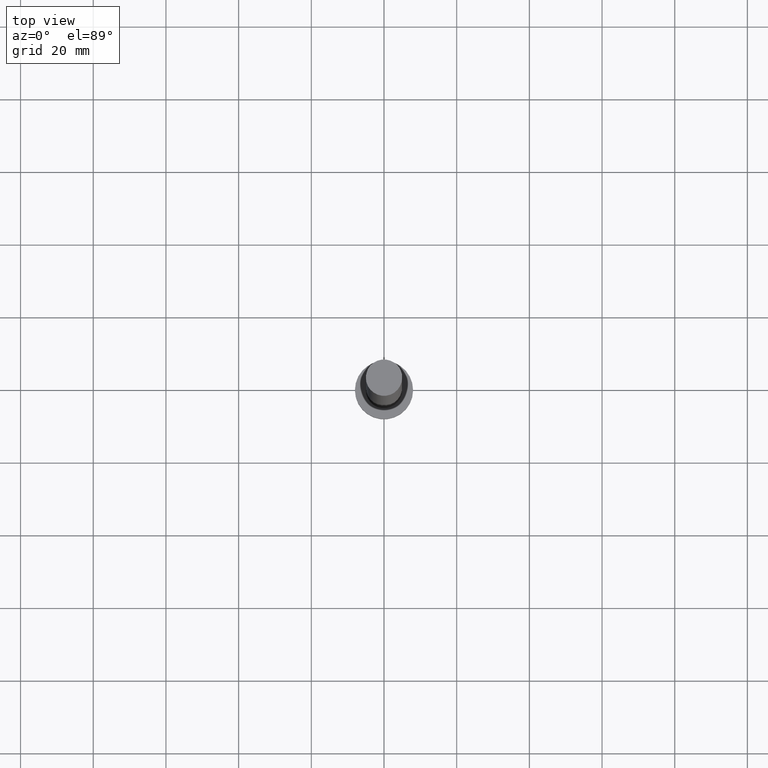
[diagram: clean part render]
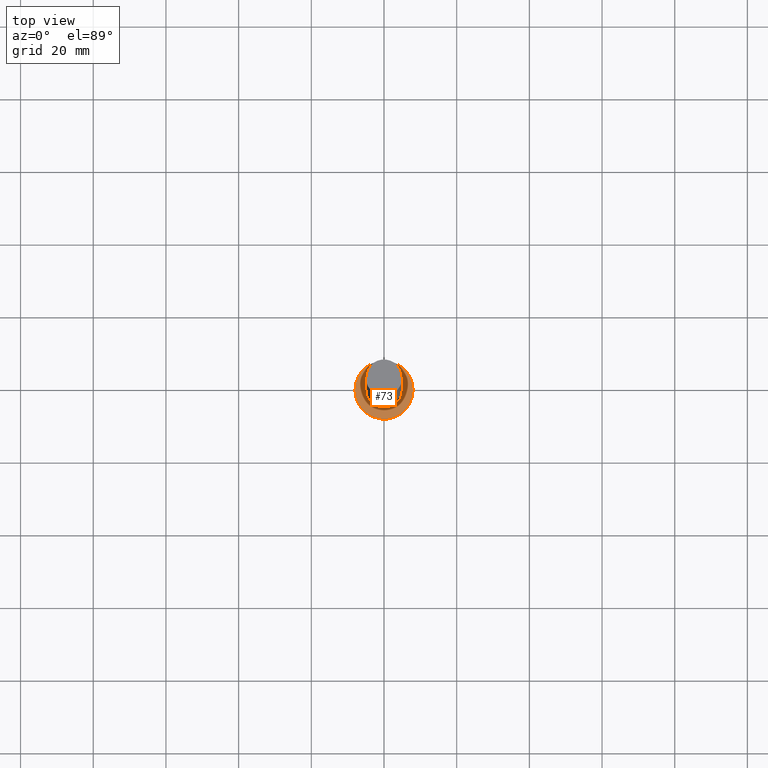
[diagram: same view with one face highlighted and labeled with its STEP entity id]
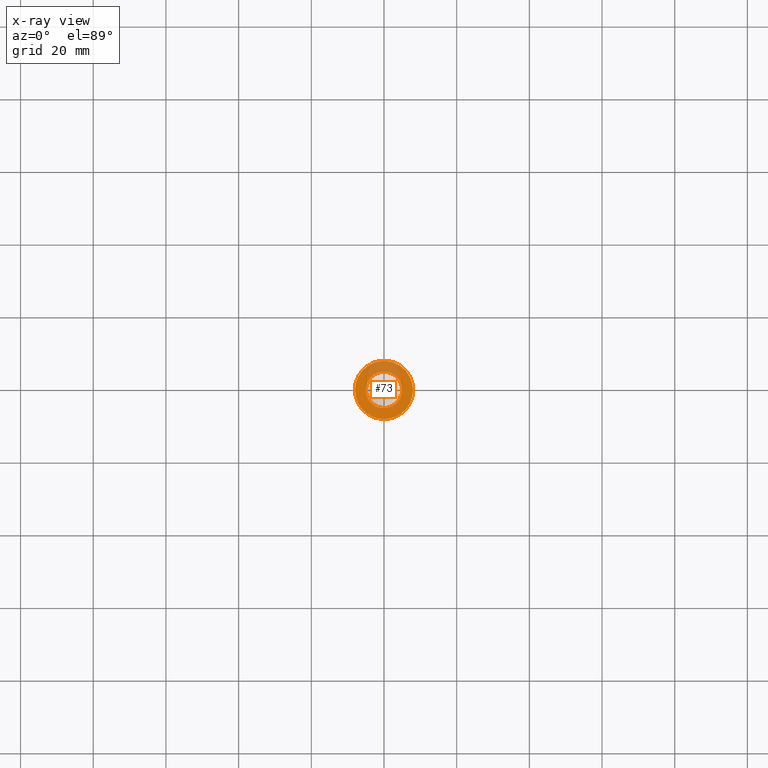
[diagram: x-ray of the same camera — body ghosted, the highlighted face saturated]
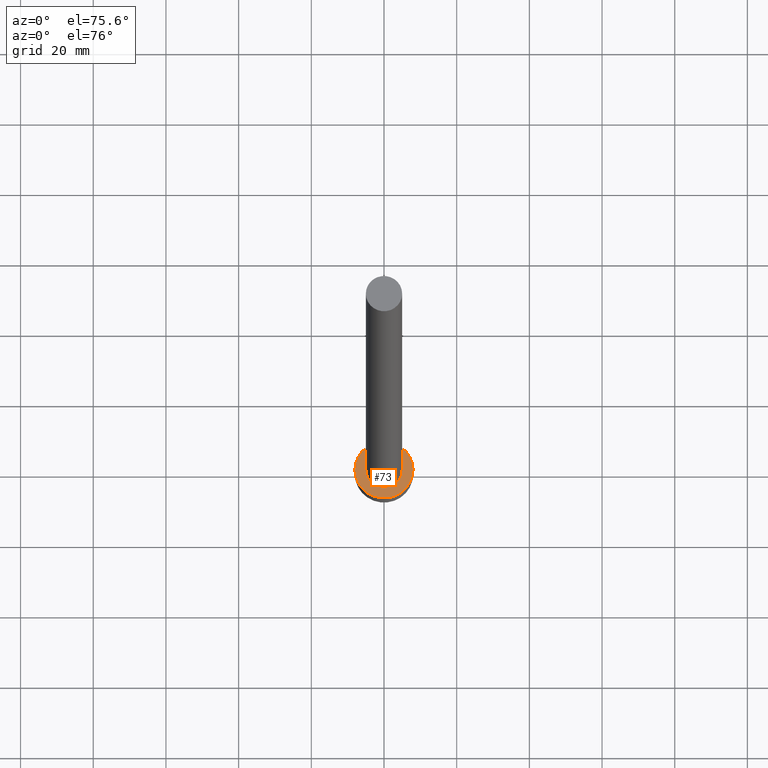
[diagram: same view with one face highlighted and labeled with its STEP entity id]
A machine part, top view. The second image highlights one B-rep face of the part: STEP entity #73.
The next image is the same camera in x-ray: the body ghosted, the highlighted face saturated — about 26% of this face is hidden behind the body in this view.
A second angle (auxiliary view) of the same face is appended — the face is thin or edge-on in the first view.
In plain terms, the highlighted planar face has unit normal (0, 0, 1).
Its self-contained STEP definition (entity closure, byte-faithful):
#4 = AXIS2_PLACEMENT_3D ( 'NONE', #102, #179, #221 ) ;
#14 = ORIENTED_EDGE ( 'NONE', *, *, #124, .T. ) ;
#15 = CIRCLE ( 'NONE', #31, 8.000000000000000000 ) ;
#16 = FACE_BOUND ( 'NONE', #114, .T. ) ;
#20 = DIRECTION ( 'NONE',  ( 0.000000000000000000, 0.000000000000000000, 1.000000000000000000 ) ) ;
#21 = CARTESIAN_POINT ( 'NONE',  ( -8.000000000000000000, 0.000000000000000000, 5.000000000000000000 ) ) ;
#31 = AXIS2_PLACEMENT_3D ( 'NONE', #34, #76, #98 ) ;
#33 = DIRECTION ( 'NONE',  ( 0.000000000000000000, 0.000000000000000000, 1.000000000000000000 ) ) ;
#34 = CARTESIAN_POINT ( 'NONE',  ( 0.000000000000000000, 0.000000000000000000, 5.000000000000000000 ) ) ;
#40 = CARTESIAN_POINT ( 'NONE',  ( 0.000000000000000000, 0.000000000000000000, 5.000000000000000000 ) ) ;
#41 = CARTESIAN_POINT ( 'NONE',  ( 0.000000000000000000, 0.000000000000000000, 5.000000000000000000 ) ) ;
#56 = DIRECTION ( 'NONE',  ( 1.000000000000000000, 0.000000000000000000, -0.000000000000000000 ) ) ;
#57 = EDGE_CURVE ( 'NONE', #194, #213, #15, .T. ) ;
#73 = ADVANCED_FACE ( 'NONE', ( #16, #138 ), #156, .T. ) ;
#76 = DIRECTION ( 'NONE',  ( 0.000000000000000000, 0.000000000000000000, 1.000000000000000000 ) ) ;
#94 = EDGE_CURVE ( 'NONE', #197, #186, #170, .T. ) ;
#98 = DIRECTION ( 'NONE',  ( 1.000000000000000000, 0.000000000000000000, 0.000000000000000000 ) ) ;
#102 = CARTESIAN_POINT ( 'NONE',  ( 0.000000000000000000, 0.000000000000000000, 5.000000000000000000 ) ) ;
#112 = ORIENTED_EDGE ( 'NONE', *, *, #133, .F. ) ;
#114 = EDGE_LOOP ( 'NONE', ( #112, #235 ) ) ;
#118 = AXIS2_PLACEMENT_3D ( 'NONE', #40, #20, #148 ) ;
#121 = AXIS2_PLACEMENT_3D ( 'NONE', #41, #239, #201 ) ;
#124 = EDGE_CURVE ( 'NONE', #213, #194, #173, .T. ) ;
#132 = AXIS2_PLACEMENT_3D ( 'NONE', #176, #33, #56 ) ;
#133 = EDGE_CURVE ( 'NONE', #186, #197, #230, .T. ) ;
#138 = FACE_OUTER_BOUND ( 'NONE', #154, .T. ) ;
#142 = CARTESIAN_POINT ( 'NONE',  ( 8.000000000000000000, 9.797174393178825657E-16, 5.000000000000000000 ) ) ;
#148 = DIRECTION ( 'NONE',  ( 1.000000000000000000, 0.000000000000000000, 0.000000000000000000 ) ) ;
#154 = EDGE_LOOP ( 'NONE', ( #14, #218 ) ) ;
#156 = PLANE ( 'NONE',  #132 ) ;
#163 = CARTESIAN_POINT ( 'NONE',  ( -5.000000000000000888, 0.000000000000000000, 5.000000000000000000 ) ) ;
#170 = CIRCLE ( 'NONE', #118, 5.000000000000000888 ) ;
#173 = CIRCLE ( 'NONE', #121, 8.000000000000000000 ) ;
#176 = CARTESIAN_POINT ( 'NONE',  ( 0.000000000000000000, 0.000000000000000000, 5.000000000000000000 ) ) ;
#179 = DIRECTION ( 'NONE',  ( 0.000000000000000000, 0.000000000000000000, 1.000000000000000000 ) ) ;
#186 = VERTEX_POINT ( 'NONE', #163 ) ;
#194 = VERTEX_POINT ( 'NONE', #142 ) ;
#197 = VERTEX_POINT ( 'NONE', #241 ) ;
#201 = DIRECTION ( 'NONE',  ( 1.000000000000000000, 0.000000000000000000, 0.000000000000000000 ) ) ;
#213 = VERTEX_POINT ( 'NONE', #21 ) ;
#218 = ORIENTED_EDGE ( 'NONE', *, *, #57, .T. ) ;
#221 = DIRECTION ( 'NONE',  ( 1.000000000000000000, 0.000000000000000000, 0.000000000000000000 ) ) ;
#230 = CIRCLE ( 'NONE', #4, 5.000000000000000888 ) ;
#235 = ORIENTED_EDGE ( 'NONE', *, *, #94, .F. ) ;
#239 = DIRECTION ( 'NONE',  ( 0.000000000000000000, 0.000000000000000000, 1.000000000000000000 ) ) ;
#241 = CARTESIAN_POINT ( 'NONE',  ( 5.000000000000000888, 6.123233995736767268E-16, 5.000000000000000000 ) ) ;